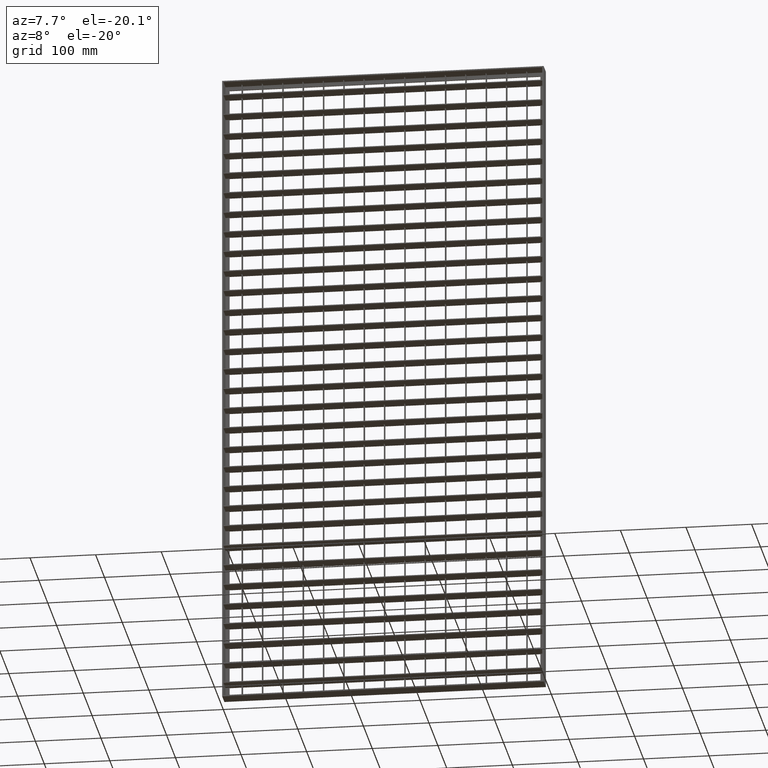
[diagram: clean part render]
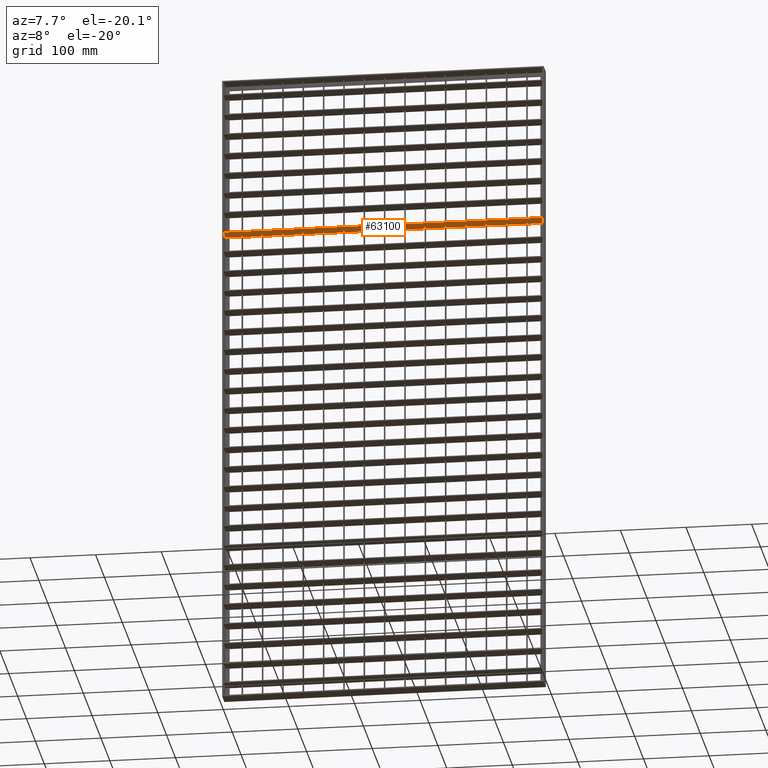
[diagram: same view with one face highlighted and labeled with its STEP entity id]
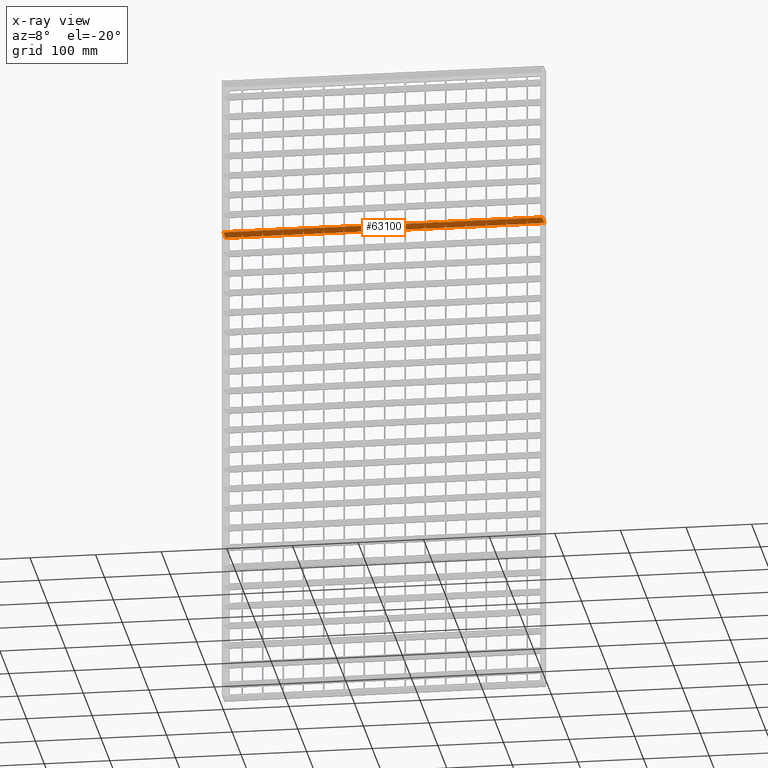
[diagram: x-ray of the same camera — body ghosted, the highlighted face saturated]
A machine part, auxiliary view. The second image highlights one B-rep face of the part: STEP entity #63100.
The next image is the same camera in x-ray: the body ghosted, the highlighted face saturated — about 0% of this face is hidden behind the body in this view.
In plain terms, the highlighted planar face has unit normal (0, 0, -1).
Its self-contained STEP definition (entity closure, byte-faithful):
#284 = DIRECTION ( 'NONE',  ( 0.0000000000000000000, -1.000000000000000000, 0.0000000000000000000 ) ) ;
#433 = LINE ( 'NONE', #63689, #37355 ) ;
#541 = ORIENTED_EDGE ( 'NONE', *, *, #67991, .T. ) ;
#939 = VECTOR ( 'NONE', #23584, 1000.000000000000000 ) ;
#1400 = EDGE_CURVE ( 'NONE', #68399, #29587, #23726, .T. ) ;
#1604 = EDGE_CURVE ( 'NONE', #31754, #42704, #20345, .T. ) ;
#1876 = LINE ( 'NONE', #38503, #33638 ) ;
#2210 = ORIENTED_EDGE ( 'NONE', *, *, #51185, .F. ) ;
#2402 = LINE ( 'NONE', #41521, #56684 ) ;
#2405 = CARTESIAN_POINT ( 'NONE',  ( 430.5000000000000000, -12.49999999999984500, -243.7500000000003400 ) ) ;
#2695 = CARTESIAN_POINT ( 'NONE',  ( 430.5000000000000000, 2.500000000000000400, -243.7500000000003400 ) ) ;
#2698 = VERTEX_POINT ( 'NONE', #38830 ) ;
#2851 = LINE ( 'NONE', #31088, #59641 ) ;
#2882 = VECTOR ( 'NONE', #56244, 1000.000000000000000 ) ;
#2969 = LINE ( 'NONE', #67754, #48570 ) ;
#3530 = ORIENTED_EDGE ( 'NONE', *, *, #46470, .F. ) ;
#3550 = LINE ( 'NONE', #39813, #60330 ) ;
#3870 = VERTEX_POINT ( 'NONE', #25675 ) ;
#3944 = VECTOR ( 'NONE', #14434, 1000.000000000000000 ) ;
#4190 = ORIENTED_EDGE ( 'NONE', *, *, #22517, .F. ) ;
#4281 = VECTOR ( 'NONE', #67530, 1000.000000000000000 ) ;
#4338 = ORIENTED_EDGE ( 'NONE', *, *, #37566, .T. ) ;
#4460 = DIRECTION ( 'NONE',  ( -1.000000000000000000, -3.061616997868382600E-016, 0.0000000000000000000 ) ) ;
#4670 = CARTESIAN_POINT ( 'NONE',  ( 7.999999999999992900, 10.50000000000000500, -243.7500000000003400 ) ) ;
#4893 = LINE ( 'NONE', #51765, #65110 ) ;
#4994 = DIRECTION ( 'NONE',  ( -1.000000000000000000, -3.061616997868382600E-016, 0.0000000000000000000 ) ) ;
#5171 = VERTEX_POINT ( 'NONE', #11675 ) ;
#5539 = VECTOR ( 'NONE', #45035, 1000.000000000000000 ) ;
#5626 = CARTESIAN_POINT ( 'NONE',  ( 513.0449595727363900, 2.499999999999924100, -243.7500000000003400 ) ) ;
#5649 = VECTOR ( 'NONE', #43609, 1000.000000000000000 ) ;
#5765 = VECTOR ( 'NONE', #32419, 1000.000000000000000 ) ;
#5853 = VECTOR ( 'NONE', #20709, 1000.000000000000000 ) ;
#6025 = CARTESIAN_POINT ( 'NONE',  ( 89.50000000000002800, -12.49999999999984500, -243.7500000000003400 ) ) ;
#6042 = LINE ( 'NONE', #45869, #62838 ) ;
#6207 = CARTESIAN_POINT ( 'NONE',  ( 152.5000000000000000, 2.500000000000000900, -243.7500000000005700 ) ) ;
#6220 = CARTESIAN_POINT ( 'NONE',  ( 151.5000000000000000, 2.500000000000000400, -243.7500000000005700 ) ) ;
#6236 = VERTEX_POINT ( 'NONE', #48801 ) ;
#6494 = ORIENTED_EDGE ( 'NONE', *, *, #50988, .F. ) ;
#6556 = VECTOR ( 'NONE', #22551, 1000.000000000000000 ) ;
#6595 = CARTESIAN_POINT ( 'NONE',  ( 431.5000000000000000, 2.500000000000000400, -243.7500000000003400 ) ) ;
#6625 = EDGE_CURVE ( 'NONE', #39008, #32177, #433, .T. ) ;
#6631 = ORIENTED_EDGE ( 'NONE', *, *, #42222, .F. ) ;
#6904 = DIRECTION ( 'NONE',  ( 8.673617379884035500E-016, 1.000000000000000000, 0.0000000000000000000 ) ) ;
#6911 = DIRECTION ( 'NONE',  ( -1.000000000000000000, -3.061616997868382600E-016, 0.0000000000000000000 ) ) ;
#7041 = ORIENTED_EDGE ( 'NONE', *, *, #22925, .F. ) ;
#7079 = EDGE_CURVE ( 'NONE', #17716, #24784, #23571, .T. ) ;
#7196 = EDGE_CURVE ( 'NONE', #35420, #23845, #70937, .T. ) ;
#7318 = VECTOR ( 'NONE', #44509, 1000.000000000000000 ) ;
#7454 = CARTESIAN_POINT ( 'NONE',  ( 513.0449595727363900, 2.499999999999898300, -243.7500000000003400 ) ) ;
#8059 = CARTESIAN_POINT ( 'NONE',  ( 244.5000000000000000, 12.50000000000007300, -243.7500000000003400 ) ) ;
#8122 = DIRECTION ( 'NONE',  ( 0.0000000000000000000, -1.000000000000000000, 0.0000000000000000000 ) ) ;
#8207 = DIRECTION ( 'NONE',  ( -1.000000000000000000, -3.061616997868382600E-016, 0.0000000000000000000 ) ) ;
#8304 = CARTESIAN_POINT ( 'NONE',  ( 27.49999999999996800, 12.50000000000000500, -243.7500000000003400 ) ) ;
#8313 = LINE ( 'NONE', #49727, #52185 ) ;
#8333 = LINE ( 'NONE', #47438, #54751 ) ;
#8376 = LINE ( 'NONE', #29827, #65124 ) ;
#8550 = DIRECTION ( 'NONE',  ( -1.000000000000000000, -3.061616997868382600E-016, 0.0000000000000000000 ) ) ;
#8633 = LINE ( 'NONE', #66455, #43867 ) ;
#8662 = DIRECTION ( 'NONE',  ( -1.000000000000000000, -3.061616997868382600E-016, 0.0000000000000000000 ) ) ;
#8750 = DIRECTION ( 'NONE',  ( 0.0000000000000000000, 1.000000000000000000, 0.0000000000000000000 ) ) ;
#8863 = DIRECTION ( 'NONE',  ( -1.000000000000000000, -3.061616997868382600E-016, 0.0000000000000000000 ) ) ;
#8969 = VECTOR ( 'NONE', #23326, 1000.000000000000000 ) ;
#9185 = EDGE_CURVE ( 'NONE', #23310, #69951, #50892, .T. ) ;
#9187 = EDGE_CURVE ( 'NONE', #17716, #17706, #36141, .T. ) ;
#9206 = DIRECTION ( 'NONE',  ( 1.000000000000000000, -4.336808689942014300E-016, 0.0000000000000000000 ) ) ;
#9212 = VERTEX_POINT ( 'NONE', #8059 ) ;
#9509 = VECTOR ( 'NONE', #4460, 1000.000000000000000 ) ;
#10023 = PLANE ( 'NONE',  #12681 ) ;
#10442 = LINE ( 'NONE', #5626, #33656 ) ;
#10718 = VECTOR ( 'NONE', #60266, 1000.000000000000000 ) ;
#11014 = ORIENTED_EDGE ( 'NONE', *, *, #60584, .F. ) ;
#11319 = CARTESIAN_POINT ( 'NONE',  ( 338.5000000000000000, 12.50000000000000000, -243.7500000000005700 ) ) ;
#11332 = CARTESIAN_POINT ( 'NONE',  ( 337.5000000000000000, 12.50000000000000000, -243.7500000000005700 ) ) ;
#11515 = CARTESIAN_POINT ( 'NONE',  ( 245.5000000000000000, 2.500000000000000900, -243.7500000000005700 ) ) ;
#11675 = CARTESIAN_POINT ( 'NONE',  ( 27.49999999999999600, 2.500000000000000400, -243.7500000000003400 ) ) ;
#11936 = VERTEX_POINT ( 'NONE', #62316 ) ;
#11989 = CARTESIAN_POINT ( 'NONE',  ( 59.50000000000000000, 12.50000000000000000, -243.7500000000003400 ) ) ;
#12226 = LINE ( 'NONE', #23592, #13945 ) ;
#12338 = VERTEX_POINT ( 'NONE', #11989 ) ;
#12438 = DIRECTION ( 'NONE',  ( -1.000000000000000000, -4.336808689942014800E-016, 0.0000000000000000000 ) ) ;
#12443 = CARTESIAN_POINT ( 'NONE',  ( 513.0449595727363900, 2.499999999999937800, -243.7500000000003400 ) ) ;
#12535 = LINE ( 'NONE', #54919, #5649 ) ;
#12675 = VERTEX_POINT ( 'NONE', #64136 ) ;
#12681 = AXIS2_PLACEMENT_3D ( 'NONE', #58625, #48011, #42689 ) ;
#13178 = ORIENTED_EDGE ( 'NONE', *, *, #64253, .F. ) ;
#13383 = CARTESIAN_POINT ( 'NONE',  ( 513.0449595727363900, 2.500000000000156800, -243.7500000000003400 ) ) ;
#13738 = VECTOR ( 'NONE', #29174, 1000.000000000000000 ) ;
#13747 = CARTESIAN_POINT ( 'NONE',  ( 369.5000000000000600, 2.500000000000000400, -243.7500000000005700 ) ) ;
#13796 = CARTESIAN_POINT ( 'NONE',  ( 513.0449595727363900, 2.500000000000142600, -243.7500000000003400 ) ) ;
#13811 = CARTESIAN_POINT ( 'NONE',  ( 59.50000000000000000, 2.500000000000000900, -243.7500000000003400 ) ) ;
#13945 = VECTOR ( 'NONE', #29367, 1000.000000000000000 ) ;
#14105 = ORIENTED_EDGE ( 'NONE', *, *, #7196, .T. ) ;
#14319 = LINE ( 'NONE', #30495, #25481 ) ;
#14434 = DIRECTION ( 'NONE',  ( -1.000000000000000000, -3.061616997868382600E-016, 0.0000000000000000000 ) ) ;
#14461 = DIRECTION ( 'NONE',  ( 0.0000000000000000000, 1.000000000000000000, 0.0000000000000000000 ) ) ;
#14542 = CARTESIAN_POINT ( 'NONE',  ( 513.0449595727363900, 12.50000000000015500, -243.7500000000003400 ) ) ;
#14553 = CARTESIAN_POINT ( 'NONE',  ( 461.5000000000000000, -12.49999999999984500, -243.7500000000003400 ) ) ;
#14575 = ORIENTED_EDGE ( 'NONE', *, *, #64880, .F. ) ;
#14703 = DIRECTION ( 'NONE',  ( -1.000000000000000000, -4.336808689942014300E-016, 0.0000000000000000000 ) ) ;
#14762 = VECTOR ( 'NONE', #56034, 1000.000000000000000 ) ;
#14864 = ORIENTED_EDGE ( 'NONE', *, *, #52055, .F. ) ;
#14942 = CARTESIAN_POINT ( 'NONE',  ( 244.5000000000000000, -12.49999999999984500, -243.7500000000003400 ) ) ;
#15132 = LINE ( 'NONE', #2405, #28031 ) ;
#15225 = CARTESIAN_POINT ( 'NONE',  ( 306.5000000000000000, 12.50000000000000000, -243.7500000000005700 ) ) ;
#15270 = VECTOR ( 'NONE', #18908, 1000.000000000000000 ) ;
#15401 = ORIENTED_EDGE ( 'NONE', *, *, #29312, .F. ) ;
#15603 = CARTESIAN_POINT ( 'NONE',  ( 338.5000000000000000, 2.500000000000000400, -243.7500000000005700 ) ) ;
#15663 = EDGE_CURVE ( 'NONE', #49301, #31614, #47017, .T. ) ;
#15761 = CARTESIAN_POINT ( 'NONE',  ( 513.0449595727363900, 12.50000000000015500, -243.7500000000003400 ) ) ;
#15773 = EDGE_CURVE ( 'NONE', #66550, #24784, #8313, .T. ) ;
#16010 = VECTOR ( 'NONE', #58833, 1000.000000000000000 ) ;
#16152 = DIRECTION ( 'NONE',  ( -1.000000000000000000, -3.061616997868382600E-016, 0.0000000000000000000 ) ) ;
#16284 = CARTESIAN_POINT ( 'NONE',  ( 182.5000000000000000, -12.49999999999984500, -243.7500000000003400 ) ) ;
#16519 = ORIENTED_EDGE ( 'NONE', *, *, #60140, .T. ) ;
#16717 = EDGE_CURVE ( 'NONE', #60700, #17445, #54598, .T. ) ;
#16754 = VERTEX_POINT ( 'NONE', #63644 ) ;
#16847 = VECTOR ( 'NONE', #38825, 1000.000000000000000 ) ;
#17040 = LINE ( 'NONE', #60141, #54987 ) ;
#17152 = CARTESIAN_POINT ( 'NONE',  ( 151.4999999999999700, -12.49999999999984500, -243.7500000000003400 ) ) ;
#17445 = VERTEX_POINT ( 'NONE', #69530 ) ;
#17451 = VERTEX_POINT ( 'NONE', #46970 ) ;
#17467 = EDGE_CURVE ( 'NONE', #31969, #16754, #29442, .T. ) ;
#17516 = CARTESIAN_POINT ( 'NONE',  ( 121.5000000000000000, 12.50000000000000000, -243.7500000000005700 ) ) ;
#17706 = VERTEX_POINT ( 'NONE', #60400 ) ;
#17716 = VERTEX_POINT ( 'NONE', #11332 ) ;
#17995 = DIRECTION ( 'NONE',  ( 0.0000000000000000000, -1.000000000000000000, 0.0000000000000000000 ) ) ;
#18413 = VERTEX_POINT ( 'NONE', #6207 ) ;
#18533 = ORIENTED_EDGE ( 'NONE', *, *, #15773, .T. ) ;
#18600 = EDGE_CURVE ( 'NONE', #16754, #69837, #6042, .T. ) ;
#18908 = DIRECTION ( 'NONE',  ( 0.0000000000000000000, 1.000000000000000000, 0.0000000000000000000 ) ) ;
#18918 = EDGE_CURVE ( 'NONE', #25061, #71108, #41340, .T. ) ;
#18968 = VECTOR ( 'NONE', #60274, 1000.000000000000000 ) ;
#19203 = DIRECTION ( 'NONE',  ( -1.000000000000000000, -4.336808689942014800E-016, 0.0000000000000000000 ) ) ;
#19428 = VECTOR ( 'NONE', #69447, 1000.000000000000000 ) ;
#19468 = CARTESIAN_POINT ( 'NONE',  ( 430.5000000000000000, 12.50000000000000000, -243.7500000000003400 ) ) ;
#20068 = CARTESIAN_POINT ( 'NONE',  ( 182.4999999999999400, 12.50000000000005500, -243.7500000000003400 ) ) ;
#20112 = VERTEX_POINT ( 'NONE', #6220 ) ;
#20256 = VECTOR ( 'NONE', #58557, 1000.000000000000000 ) ;
#20296 = LINE ( 'NONE', #15761, #34935 ) ;
#20345 = LINE ( 'NONE', #37835, #16010 ) ;
#20614 = EDGE_CURVE ( 'NONE', #69837, #30982, #53079, .T. ) ;
#20709 = DIRECTION ( 'NONE',  ( 0.0000000000000000000, 1.000000000000000000, 0.0000000000000000000 ) ) ;
#20818 = EDGE_CURVE ( 'NONE', #69951, #60459, #63378, .T. ) ;
#21064 = CARTESIAN_POINT ( 'NONE',  ( 2.000000000000002700, 10.50000000000000500, -243.7500000000003400 ) ) ;
#21502 = VECTOR ( 'NONE', #35416, 1000.000000000000000 ) ;
#21571 = VECTOR ( 'NONE', #68377, 1000.000000000000000 ) ;
#21732 = VERTEX_POINT ( 'NONE', #15225 ) ;
#21738 = LINE ( 'NONE', #32938, #32871 ) ;
#21855 = CARTESIAN_POINT ( 'NONE',  ( 7.999999999999994700, 12.50000000000000500, -243.7500000000003400 ) ) ;
#22168 = ORIENTED_EDGE ( 'NONE', *, *, #18918, .F. ) ;
#22276 = DIRECTION ( 'NONE',  ( 0.0000000000000000000, 1.000000000000000000, 0.0000000000000000000 ) ) ;
#22517 = EDGE_CURVE ( 'NONE', #5171, #26175, #2851, .T. ) ;
#22532 = ORIENTED_EDGE ( 'NONE', *, *, #1604, .F. ) ;
#22551 = DIRECTION ( 'NONE',  ( 0.0000000000000000000, 1.000000000000000000, 0.0000000000000000000 ) ) ;
#22925 = EDGE_CURVE ( 'NONE', #58299, #31448, #12226, .T. ) ;
#23288 = CARTESIAN_POINT ( 'NONE',  ( 245.0000000000000000, 10.50000000000000500, -243.7500000000003400 ) ) ;
#23310 = VERTEX_POINT ( 'NONE', #54357 ) ;
#23326 = DIRECTION ( 'NONE',  ( -1.000000000000000000, -3.061616997868382600E-016, 0.0000000000000000000 ) ) ;
#23424 = VECTOR ( 'NONE', #8750, 1000.000000000000000 ) ;
#23557 = EDGE_CURVE ( 'NONE', #28945, #35201, #26290, .T. ) ;
#23571 = LINE ( 'NONE', #28406, #5539 ) ;
#23584 = DIRECTION ( 'NONE',  ( 0.0000000000000000000, 1.000000000000000000, 0.0000000000000000000 ) ) ;
#23592 = CARTESIAN_POINT ( 'NONE',  ( 58.50000000000000000, -12.49999999999984500, -243.7500000000003400 ) ) ;
#23726 = LINE ( 'NONE', #14553, #38453 ) ;
#23845 = VERTEX_POINT ( 'NONE', #47497 ) ;
#23963 = EDGE_CURVE ( 'NONE', #36027, #29089, #12535, .T. ) ;
#24520 = VERTEX_POINT ( 'NONE', #37706 ) ;
#24553 = CARTESIAN_POINT ( 'NONE',  ( 183.5000000000000000, 12.50000000000000000, -243.7500000000005700 ) ) ;
#24614 = LINE ( 'NONE', #54488, #52192 ) ;
#24767 = DIRECTION ( 'NONE',  ( 0.0000000000000000000, -1.000000000000000000, 0.0000000000000000000 ) ) ;
#24784 = VERTEX_POINT ( 'NONE', #55536 ) ;
#24911 = CARTESIAN_POINT ( 'NONE',  ( 58.50000000000000000, 2.500000000000000400, -243.7500000000003400 ) ) ;
#25061 = VERTEX_POINT ( 'NONE', #27559 ) ;
#25216 = LINE ( 'NONE', #69437, #34671 ) ;
#25292 = VECTOR ( 'NONE', #8122, 1000.000000000000000 ) ;
#25458 = EDGE_CURVE ( 'NONE', #70810, #12675, #27668, .T. ) ;
#25481 = VECTOR ( 'NONE', #8207, 1000.000000000000000 ) ;
#25619 = LINE ( 'NONE', #27983, #28236 ) ;
#25625 = ORIENTED_EDGE ( 'NONE', *, *, #42952, .F. ) ;
#25640 = VERTEX_POINT ( 'NONE', #58860 ) ;
#25675 = CARTESIAN_POINT ( 'NONE',  ( 214.5000000000000000, 12.50000000000000000, -243.7500000000005700 ) ) ;
#25877 = DIRECTION ( 'NONE',  ( -1.000000000000000000, -3.061616997868382600E-016, 0.0000000000000000000 ) ) ;
#26066 = LINE ( 'NONE', #42380, #68269 ) ;
#26175 = VERTEX_POINT ( 'NONE', #8304 ) ;
#26290 = LINE ( 'NONE', #6025, #6556 ) ;
#26626 = DIRECTION ( 'NONE',  ( 1.000000000000000000, -4.336808689942014800E-016, 0.0000000000000000000 ) ) ;
#27056 = DIRECTION ( 'NONE',  ( -1.000000000000000000, -4.336808689942014300E-016, 0.0000000000000000000 ) ) ;
#27122 = EDGE_CURVE ( 'NONE', #20112, #56295, #61028, .T. ) ;
#27324 = CARTESIAN_POINT ( 'NONE',  ( 513.0449595727363900, 2.500000000000130600, -243.7500000000003400 ) ) ;
#27437 = VERTEX_POINT ( 'NONE', #30336 ) ;
#27528 = CARTESIAN_POINT ( 'NONE',  ( 461.5000000000000000, 2.500000000000000400, -243.7500000000003400 ) ) ;
#27559 = CARTESIAN_POINT ( 'NONE',  ( 368.5000000000000600, 12.50000000000000000, -243.7500000000005700 ) ) ;
#27620 = ORIENTED_EDGE ( 'NONE', *, *, #33773, .T. ) ;
#27668 = LINE ( 'NONE', #40291, #14762 ) ;
#27669 = VERTEX_POINT ( 'NONE', #60644 ) ;
#27742 = DIRECTION ( 'NONE',  ( 0.0000000000000000000, 1.000000000000000000, 0.0000000000000000000 ) ) ;
#27983 = CARTESIAN_POINT ( 'NONE',  ( 513.0449595727363900, 2.499999999999977800, -243.7500000000003400 ) ) ;
#28031 = VECTOR ( 'NONE', #46192, 1000.000000000000000 ) ;
#28167 = EDGE_CURVE ( 'NONE', #25061, #47858, #57490, .T. ) ;
#28211 = DIRECTION ( 'NONE',  ( 1.000000000000000000, -4.336808689942014300E-016, 0.0000000000000000000 ) ) ;
#28236 = VECTOR ( 'NONE', #28211, 1000.000000000000000 ) ;
#28397 = EDGE_CURVE ( 'NONE', #17451, #57318, #71180, .T. ) ;
#28406 = CARTESIAN_POINT ( 'NONE',  ( 513.0449595727363900, 12.50000000000015500, -243.7500000000003400 ) ) ;
#28462 = ORIENTED_EDGE ( 'NONE', *, *, #29352, .T. ) ;
#28589 = ORIENTED_EDGE ( 'NONE', *, *, #57760, .F. ) ;
#28711 = EDGE_CURVE ( 'NONE', #27437, #24520, #4893, .T. ) ;
#28945 = VERTEX_POINT ( 'NONE', #65872 ) ;
#28955 = ORIENTED_EDGE ( 'NONE', *, *, #28397, .F. ) ;
#29089 = VERTEX_POINT ( 'NONE', #61288 ) ;
#29174 = DIRECTION ( 'NONE',  ( 0.0000000000000000000, -1.000000000000000000, 0.0000000000000000000 ) ) ;
#29312 = EDGE_CURVE ( 'NONE', #21732, #69073, #2402, .T. ) ;
#29352 = EDGE_CURVE ( 'NONE', #32102, #71108, #48020, .T. ) ;
#29367 = DIRECTION ( 'NONE',  ( 0.0000000000000000000, 1.000000000000000000, 0.0000000000000000000 ) ) ;
#29442 = LINE ( 'NONE', #63558, #23424 ) ;
#29587 = VERTEX_POINT ( 'NONE', #27528 ) ;
#29827 = CARTESIAN_POINT ( 'NONE',  ( 513.0449595727363900, 12.50000000000015500, -243.7500000000003400 ) ) ;
#29968 = CARTESIAN_POINT ( 'NONE',  ( 338.5000000000000000, -12.49999999999984500, -243.7500000000003400 ) ) ;
#30324 = ORIENTED_EDGE ( 'NONE', *, *, #55630, .T. ) ;
#30336 = CARTESIAN_POINT ( 'NONE',  ( 120.5000000000000000, 12.50000000000003600, -243.7500000000003400 ) ) ;
#30352 = LINE ( 'NONE', #34156, #8969 ) ;
#30414 = LINE ( 'NONE', #45400, #31296 ) ;
#30495 = CARTESIAN_POINT ( 'NONE',  ( 513.0449595727363900, 12.50000000000015500, -243.7500000000003400 ) ) ;
#30649 = DIRECTION ( 'NONE',  ( -1.000000000000000000, -3.061616997868382600E-016, 0.0000000000000000000 ) ) ;
#30692 = EDGE_CURVE ( 'NONE', #32032, #35420, #24614, .T. ) ;
#30950 = VECTOR ( 'NONE', #26626, 1000.000000000000000 ) ;
#30982 = VERTEX_POINT ( 'NONE', #33752 ) ;
#31028 = FACE_OUTER_BOUND ( 'NONE', #68639, .T. ) ;
#31088 = CARTESIAN_POINT ( 'NONE',  ( 27.49999999999996800, -12.49999999999984500, -243.7500000000003400 ) ) ;
#31162 = CARTESIAN_POINT ( 'NONE',  ( 513.0449595727363900, 12.50000000000015500, -243.7500000000003400 ) ) ;
#31192 = ORIENTED_EDGE ( 'NONE', *, *, #25458, .T. ) ;
#31296 = VECTOR ( 'NONE', #12438, 1000.000000000000000 ) ;
#31327 = EDGE_CURVE ( 'NONE', #26175, #68275, #62413, .T. ) ;
#31413 = DIRECTION ( 'NONE',  ( 0.0000000000000000000, -1.000000000000000000, 0.0000000000000000000 ) ) ;
#31448 = VERTEX_POINT ( 'NONE', #59496 ) ;
#31577 = ORIENTED_EDGE ( 'NONE', *, *, #49490, .F. ) ;
#31614 = VERTEX_POINT ( 'NONE', #4670 ) ;
#31656 = ORIENTED_EDGE ( 'NONE', *, *, #51847, .F. ) ;
#31754 = VERTEX_POINT ( 'NONE', #67132 ) ;
#31969 = VERTEX_POINT ( 'NONE', #36065 ) ;
#32032 = VERTEX_POINT ( 'NONE', #2695 ) ;
#32072 = DIRECTION ( 'NONE',  ( 1.000000000000000000, -4.336808689942014300E-016, 0.0000000000000000000 ) ) ;
#32102 = VERTEX_POINT ( 'NONE', #15603 ) ;
#32128 = VECTOR ( 'NONE', #36186, 1000.000000000000000 ) ;
#32177 = VERTEX_POINT ( 'NONE', #70449 ) ;
#32419 = DIRECTION ( 'NONE',  ( -1.000000000000000000, -3.061616997868382600E-016, 0.0000000000000000000 ) ) ;
#32484 = LINE ( 'NONE', #42101, #66124 ) ;
#32757 = DIRECTION ( 'NONE',  ( 1.000000000000000000, -4.336808689942014800E-016, 0.0000000000000000000 ) ) ;
#32871 = VECTOR ( 'NONE', #70481, 1000.000000000000000 ) ;
#32938 = CARTESIAN_POINT ( 'NONE',  ( 121.5000000000000000, -12.49999999999984500, -243.7500000000003400 ) ) ;
#32999 = CARTESIAN_POINT ( 'NONE',  ( 400.4999999999999400, 12.50000000000000000, -243.7500000000003400 ) ) ;
#33638 = VECTOR ( 'NONE', #14703, 1000.000000000000000 ) ;
#33656 = VECTOR ( 'NONE', #32757, 1000.000000000000000 ) ;
#33752 = CARTESIAN_POINT ( 'NONE',  ( 183.5000000000000000, 2.500000000000000900, -243.7500000000005700 ) ) ;
#33773 = EDGE_CURVE ( 'NONE', #11936, #68775, #25216, .T. ) ;
#33912 = ORIENTED_EDGE ( 'NONE', *, *, #34083, .F. ) ;
#33917 = VECTOR ( 'NONE', #17995, 1000.000000000000000 ) ;
#34083 = EDGE_CURVE ( 'NONE', #17445, #5171, #37217, .T. ) ;
#34156 = CARTESIAN_POINT ( 'NONE',  ( 513.0449595727363900, 12.50000000000015500, -243.7500000000003400 ) ) ;
#34470 = CARTESIAN_POINT ( 'NONE',  ( 59.50000000000000000, -12.49999999999984500, -243.7500000000003400 ) ) ;
#34671 = VECTOR ( 'NONE', #25877, 1000.000000000000000 ) ;
#34781 = ORIENTED_EDGE ( 'NONE', *, *, #9187, .T. ) ;
#34892 = DIRECTION ( 'NONE',  ( -1.000000000000000000, -3.061616997868382600E-016, 0.0000000000000000000 ) ) ;
#34927 = ORIENTED_EDGE ( 'NONE', *, *, #63309, .F. ) ;
#34935 = VECTOR ( 'NONE', #4994, 1000.000000000000000 ) ;
#35031 = CARTESIAN_POINT ( 'NONE',  ( 121.5000000000000000, 2.500000000000000900, -243.7500000000005700 ) ) ;
#35124 = CARTESIAN_POINT ( 'NONE',  ( 152.4999999999999700, -12.49999999999984500, -243.7500000000003400 ) ) ;
#35201 = VERTEX_POINT ( 'NONE', #59753 ) ;
#35416 = DIRECTION ( 'NONE',  ( 0.0000000000000000000, -1.000000000000000000, 0.0000000000000000000 ) ) ;
#35420 = VERTEX_POINT ( 'NONE', #6595 ) ;
#35782 = LINE ( 'NONE', #47543, #63375 ) ;
#36027 = VERTEX_POINT ( 'NONE', #66603 ) ;
#36065 = CARTESIAN_POINT ( 'NONE',  ( 213.5000000000000000, 2.500000000000000400, -243.7500000000005700 ) ) ;
#36103 = ORIENTED_EDGE ( 'NONE', *, *, #53912, .F. ) ;
#36141 = LINE ( 'NONE', #56659, #21502 ) ;
#36186 = DIRECTION ( 'NONE',  ( -1.000000000000000000, -4.336808689942014800E-016, 0.0000000000000000000 ) ) ;
#36251 = LINE ( 'NONE', #31162, #40562 ) ;
#36774 = VERTEX_POINT ( 'NONE', #13811 ) ;
#37217 = LINE ( 'NONE', #54521, #41519 ) ;
#37333 = EDGE_CURVE ( 'NONE', #23310, #55057, #8376, .T. ) ;
#37355 = VECTOR ( 'NONE', #58420, 1000.000000000000000 ) ;
#37362 = ORIENTED_EDGE ( 'NONE', *, *, #66265, .T. ) ;
#37566 = EDGE_CURVE ( 'NONE', #42368, #32032, #15132, .T. ) ;
#37706 = CARTESIAN_POINT ( 'NONE',  ( 90.50000000000000000, 12.50000000000000000, -243.7500000000003400 ) ) ;
#37835 = CARTESIAN_POINT ( 'NONE',  ( 245.5000000000000000, -12.49999999999984500, -243.7500000000003400 ) ) ;
#38327 = LINE ( 'NONE', #50134, #16847 ) ;
#38453 = VECTOR ( 'NONE', #53046, 1000.000000000000000 ) ;
#38503 = CARTESIAN_POINT ( 'NONE',  ( 513.0449595727363900, 2.500000000000196300, -243.7500000000003400 ) ) ;
#38825 = DIRECTION ( 'NONE',  ( 0.0000000000000000000, 1.000000000000000000, 0.0000000000000000000 ) ) ;
#38830 = CARTESIAN_POINT ( 'NONE',  ( 462.5000000000000000, 2.500000000000000400, -243.7500000000003400 ) ) ;
#39008 = VERTEX_POINT ( 'NONE', #13747 ) ;
#39197 = CARTESIAN_POINT ( 'NONE',  ( 368.5000000000000600, 2.500000000000000400, -243.7500000000003400 ) ) ;
#39238 = VERTEX_POINT ( 'NONE', #49841 ) ;
#39297 = CARTESIAN_POINT ( 'NONE',  ( 120.5000000000000000, 2.500000000000000400, -243.7500000000005700 ) ) ;
#39813 = CARTESIAN_POINT ( 'NONE',  ( 7.999999999999992900, 10.50000000000000500, -243.7500000000003400 ) ) ;
#39882 = CARTESIAN_POINT ( 'NONE',  ( 461.5000000000000000, 12.50000000000000000, -243.7500000000003400 ) ) ;
#40291 = CARTESIAN_POINT ( 'NONE',  ( 275.4999999999999400, -12.49999999999984500, -243.7500000000003400 ) ) ;
#40562 = VECTOR ( 'NONE', #8662, 1000.000000000000000 ) ;
#40751 = EDGE_CURVE ( 'NONE', #62657, #9212, #59179, .T. ) ;
#41267 = EDGE_CURVE ( 'NONE', #35201, #12338, #14319, .T. ) ;
#41340 = LINE ( 'NONE', #14542, #9509 ) ;
#41405 = CARTESIAN_POINT ( 'NONE',  ( 244.5000000000000000, 2.500000000000000400, -243.7500000000005700 ) ) ;
#41519 = VECTOR ( 'NONE', #27056, 1000.000000000000000 ) ;
#41521 = CARTESIAN_POINT ( 'NONE',  ( 513.0449595727363900, 12.50000000000015500, -243.7500000000003400 ) ) ;
#41557 = CARTESIAN_POINT ( 'NONE',  ( 2.000000000000002700, 10.50000000000000500, -243.7500000000003400 ) ) ;
#41571 = EDGE_CURVE ( 'NONE', #11936, #60459, #38327, .T. ) ;
#41584 = LINE ( 'NONE', #27324, #46790 ) ;
#41591 = ORIENTED_EDGE ( 'NONE', *, *, #28711, .F. ) ;
#41673 = ORIENTED_EDGE ( 'NONE', *, *, #53215, .T. ) ;
#41801 = VECTOR ( 'NONE', #70643, 1000.000000000000000 ) ;
#42101 = CARTESIAN_POINT ( 'NONE',  ( 462.5000000000000000, -12.49999999999984500, -243.7500000000003400 ) ) ;
#42222 = EDGE_CURVE ( 'NONE', #3870, #25640, #65809, .T. ) ;
#42233 = ORIENTED_EDGE ( 'NONE', *, *, #15663, .T. ) ;
#42368 = VERTEX_POINT ( 'NONE', #19468 ) ;
#42380 = CARTESIAN_POINT ( 'NONE',  ( 120.5000000000000000, -12.49999999999984500, -243.7500000000003400 ) ) ;
#42427 = EDGE_CURVE ( 'NONE', #56295, #70217, #59001, .T. ) ;
#42689 = DIRECTION ( 'NONE',  ( -1.000000000000000000, 0.0000000000000000000, 0.0000000000000000000 ) ) ;
#42704 = VERTEX_POINT ( 'NONE', #11515 ) ;
#42764 = VECTOR ( 'NONE', #284, 1000.000000000000000 ) ;
#42872 = VERTEX_POINT ( 'NONE', #35031 ) ;
#42952 = EDGE_CURVE ( 'NONE', #6236, #28945, #2969, .T. ) ;
#43563 = ORIENTED_EDGE ( 'NONE', *, *, #40751, .F. ) ;
#43609 = DIRECTION ( 'NONE',  ( 0.0000000000000000000, -1.000000000000000000, 0.0000000000000000000 ) ) ;
#43858 = CARTESIAN_POINT ( 'NONE',  ( 513.0449595727363900, 12.50000000000015500, -243.7500000000003400 ) ) ;
#43867 = VECTOR ( 'NONE', #65743, 1000.000000000000000 ) ;
#43913 = LINE ( 'NONE', #48335, #30950 ) ;
#43978 = DIRECTION ( 'NONE',  ( 0.0000000000000000000, 1.000000000000000000, 0.0000000000000000000 ) ) ;
#44054 = CARTESIAN_POINT ( 'NONE',  ( 400.4999999999999400, 2.500000000000000400, -243.7500000000003400 ) ) ;
#44185 = DIRECTION ( 'NONE',  ( -1.000000000000000000, -4.336808689942014800E-016, 0.0000000000000000000 ) ) ;
#44509 = DIRECTION ( 'NONE',  ( 0.0000000000000000000, -1.000000000000000000, 0.0000000000000000000 ) ) ;
#45035 = DIRECTION ( 'NONE',  ( -1.000000000000000000, -3.061616997868382600E-016, 0.0000000000000000000 ) ) ;
#45290 = EDGE_CURVE ( 'NONE', #47858, #39008, #54498, .T. ) ;
#45369 = LINE ( 'NONE', #59630, #5765 ) ;
#45400 = CARTESIAN_POINT ( 'NONE',  ( 513.0449595727363900, 2.500000000000170500, -243.7500000000003400 ) ) ;
#45512 = ORIENTED_EDGE ( 'NONE', *, *, #53388, .F. ) ;
#45711 = LINE ( 'NONE', #56112, #939 ) ;
#45869 = CARTESIAN_POINT ( 'NONE',  ( 513.0449595727363900, 12.50000000000015500, -243.7500000000003400 ) ) ;
#46086 = ORIENTED_EDGE ( 'NONE', *, *, #28167, .T. ) ;
#46192 = DIRECTION ( 'NONE',  ( 0.0000000000000000000, -1.000000000000000000, 0.0000000000000000000 ) ) ;
#46336 = CARTESIAN_POINT ( 'NONE',  ( 28.49999999999997200, -12.49999999999984500, -243.7500000000003400 ) ) ;
#46412 = VECTOR ( 'NONE', #27742, 1000.000000000000000 ) ;
#46470 = EDGE_CURVE ( 'NONE', #36774, #58299, #1876, .T. ) ;
#46534 = VECTOR ( 'NONE', #24767, 1000.000000000000000 ) ;
#46790 = VECTOR ( 'NONE', #44185, 1000.000000000000000 ) ;
#46970 = CARTESIAN_POINT ( 'NONE',  ( 182.5000000000000000, 2.500000000000000400, -243.7500000000005700 ) ) ;
#47017 = LINE ( 'NONE', #21064, #41801 ) ;
#47411 = CARTESIAN_POINT ( 'NONE',  ( 513.0449595727363900, 12.50000000000015500, -243.7500000000003400 ) ) ;
#47438 = CARTESIAN_POINT ( 'NONE',  ( 513.0449595727363900, 2.499999999999952000, -243.7500000000003400 ) ) ;
#47465 = ORIENTED_EDGE ( 'NONE', *, *, #18600, .F. ) ;
#47497 = CARTESIAN_POINT ( 'NONE',  ( 431.5000000000000000, 12.50000000000000000, -243.7500000000003400 ) ) ;
#47543 = CARTESIAN_POINT ( 'NONE',  ( 513.0449595727363900, 12.50000000000015500, -243.7500000000003400 ) ) ;
#47769 = VECTOR ( 'NONE', #16152, 1000.000000000000000 ) ;
#47838 = ORIENTED_EDGE ( 'NONE', *, *, #69831, .T. ) ;
#47858 = VERTEX_POINT ( 'NONE', #39197 ) ;
#47909 = VERTEX_POINT ( 'NONE', #44054 ) ;
#48011 = DIRECTION ( 'NONE',  ( 0.0000000000000000000, 0.0000000000000000000, -1.000000000000000000 ) ) ;
#48020 = LINE ( 'NONE', #29968, #15270 ) ;
#48044 = CARTESIAN_POINT ( 'NONE',  ( 2.000000000000002700, -12.50000000000000000, -243.7500000000003400 ) ) ;
#48276 = LINE ( 'NONE', #60031, #18968 ) ;
#48309 = ORIENTED_EDGE ( 'NONE', *, *, #31327, .F. ) ;
#48335 = CARTESIAN_POINT ( 'NONE',  ( 513.0449595727363900, 2.499999999999910300, -243.7500000000003400 ) ) ;
#48371 = DIRECTION ( 'NONE',  ( 0.0000000000000000000, -1.000000000000000000, 0.0000000000000000000 ) ) ;
#48570 = VECTOR ( 'NONE', #51423, 1000.000000000000000 ) ;
#48571 = LINE ( 'NONE', #50746, #33917 ) ;
#48801 = CARTESIAN_POINT ( 'NONE',  ( 90.50000000000000000, 2.500000000000000900, -243.7500000000003400 ) ) ;
#48849 = CARTESIAN_POINT ( 'NONE',  ( 276.4999999999999400, 2.500000000000000400, -243.7500000000005700 ) ) ;
#48897 = VERTEX_POINT ( 'NONE', #48849 ) ;
#48982 = EDGE_CURVE ( 'NONE', #70217, #42872, #21738, .T. ) ;
#49030 = LINE ( 'NONE', #68288, #62858 ) ;
#49301 = VERTEX_POINT ( 'NONE', #41557 ) ;
#49490 = EDGE_CURVE ( 'NONE', #36027, #32177, #45369, .T. ) ;
#49682 = ORIENTED_EDGE ( 'NONE', *, *, #27122, .F. ) ;
#49727 = CARTESIAN_POINT ( 'NONE',  ( 307.5000000000000000, -12.49999999999984500, -243.7500000000003400 ) ) ;
#49841 = CARTESIAN_POINT ( 'NONE',  ( 152.5000000000000000, 12.50000000000000000, -243.7500000000005700 ) ) ;
#50072 = DIRECTION ( 'NONE',  ( 0.0000000000000000000, 1.000000000000000000, 0.0000000000000000000 ) ) ;
#50134 = CARTESIAN_POINT ( 'NONE',  ( 488.0000000000001100, -12.49999999999984500, -243.7500000000003400 ) ) ;
#50233 = EDGE_CURVE ( 'NONE', #68775, #49301, #52129, .T. ) ;
#50311 = ORIENTED_EDGE ( 'NONE', *, *, #23963, .T. ) ;
#50746 = CARTESIAN_POINT ( 'NONE',  ( 306.5000000000000000, -12.49999999999984500, -243.7500000000003400 ) ) ;
#50892 = LINE ( 'NONE', #51576, #21571 ) ;
#50988 = EDGE_CURVE ( 'NONE', #42872, #55790, #30414, .T. ) ;
#51185 = EDGE_CURVE ( 'NONE', #18413, #20112, #61434, .T. ) ;
#51337 = ORIENTED_EDGE ( 'NONE', *, *, #30692, .T. ) ;
#51423 = DIRECTION ( 'NONE',  ( -1.000000000000000000, -4.336808689942014300E-016, 0.0000000000000000000 ) ) ;
#51576 = CARTESIAN_POINT ( 'NONE',  ( 482.0000000000001100, 10.50000000000036400, -243.7500000000003400 ) ) ;
#51765 = CARTESIAN_POINT ( 'NONE',  ( 513.0449595727363900, 12.50000000000015500, -243.7500000000003400 ) ) ;
#51847 = EDGE_CURVE ( 'NONE', #55790, #27437, #26066, .T. ) ;
#51992 = DIRECTION ( 'NONE',  ( -1.000000000000000000, -3.061616997868382600E-016, 0.0000000000000000000 ) ) ;
#51997 = ORIENTED_EDGE ( 'NONE', *, *, #7079, .F. ) ;
#52055 = EDGE_CURVE ( 'NONE', #9212, #3870, #30352, .T. ) ;
#52114 = LINE ( 'NONE', #13796, #20256 ) ;
#52129 = LINE ( 'NONE', #60429, #57340 ) ;
#52185 = VECTOR ( 'NONE', #22276, 1000.000000000000000 ) ;
#52192 = VECTOR ( 'NONE', #32072, 1000.000000000000000 ) ;
#53046 = DIRECTION ( 'NONE',  ( 0.0000000000000000000, -1.000000000000000000, 0.0000000000000000000 ) ) ;
#53079 = LINE ( 'NONE', #67075, #42764 ) ;
#53109 = EDGE_CURVE ( 'NONE', #17706, #32102, #10442, .T. ) ;
#53215 = EDGE_CURVE ( 'NONE', #47909, #64314, #45711, .T. ) ;
#53388 = EDGE_CURVE ( 'NONE', #39238, #18413, #70593, .T. ) ;
#53419 = ORIENTED_EDGE ( 'NONE', *, *, #63624, .F. ) ;
#53912 = EDGE_CURVE ( 'NONE', #70810, #31754, #63651, .T. ) ;
#54357 = CARTESIAN_POINT ( 'NONE',  ( 482.0000000000000600, 12.50000000000000500, -243.7500000000003400 ) ) ;
#54422 = DIRECTION ( 'NONE',  ( 0.0000000000000000000, 1.000000000000000000, 0.0000000000000000000 ) ) ;
#54488 = CARTESIAN_POINT ( 'NONE',  ( 513.0449595727363900, 2.499999999999964000, -243.7500000000003400 ) ) ;
#54498 = LINE ( 'NONE', #12443, #2882 ) ;
#54521 = CARTESIAN_POINT ( 'NONE',  ( 513.0449595727363900, 2.500000000000210500, -243.7500000000003400 ) ) ;
#54598 = LINE ( 'NONE', #46336, #25292 ) ;
#54751 = VECTOR ( 'NONE', #9206, 1000.000000000000000 ) ;
#54919 = CARTESIAN_POINT ( 'NONE',  ( 399.4999999999999400, -12.49999999999984500, -243.7500000000003400 ) ) ;
#54987 = VECTOR ( 'NONE', #48371, 1000.000000000000000 ) ;
#55057 = VERTEX_POINT ( 'NONE', #68015 ) ;
#55070 = EDGE_CURVE ( 'NONE', #12675, #48897, #57648, .T. ) ;
#55263 = ORIENTED_EDGE ( 'NONE', *, *, #70875, .T. ) ;
#55536 = CARTESIAN_POINT ( 'NONE',  ( 307.5000000000000000, 12.50000000000000000, -243.7500000000005700 ) ) ;
#55577 = ORIENTED_EDGE ( 'NONE', *, *, #16717, .F. ) ;
#55630 = EDGE_CURVE ( 'NONE', #29587, #2698, #25619, .T. ) ;
#55695 = ORIENTED_EDGE ( 'NONE', *, *, #37333, .F. ) ;
#55710 = CARTESIAN_POINT ( 'NONE',  ( 28.49999999999999600, 12.50000000000000000, -243.7500000000003400 ) ) ;
#55790 = VERTEX_POINT ( 'NONE', #39297 ) ;
#56034 = DIRECTION ( 'NONE',  ( 0.0000000000000000000, -1.000000000000000000, 0.0000000000000000000 ) ) ;
#56112 = CARTESIAN_POINT ( 'NONE',  ( 400.4999999999999400, -12.49999999999984500, -243.7500000000003400 ) ) ;
#56244 = DIRECTION ( 'NONE',  ( 1.000000000000000000, -4.336808689942014800E-016, 0.0000000000000000000 ) ) ;
#56295 = VERTEX_POINT ( 'NONE', #61347 ) ;
#56608 = VECTOR ( 'NONE', #43978, 1000.000000000000000 ) ;
#56659 = CARTESIAN_POINT ( 'NONE',  ( 337.5000000000000000, -12.49999999999984500, -243.7500000000003400 ) ) ;
#56684 = VECTOR ( 'NONE', #8863, 1000.000000000000000 ) ;
#56686 = ORIENTED_EDGE ( 'NONE', *, *, #20614, .F. ) ;
#56907 = ORIENTED_EDGE ( 'NONE', *, *, #57334, .F. ) ;
#57318 = VERTEX_POINT ( 'NONE', #20068 ) ;
#57334 = EDGE_CURVE ( 'NONE', #31448, #60700, #35782, .T. ) ;
#57337 = CARTESIAN_POINT ( 'NONE',  ( 275.4999999999999400, 12.50000000000000000, -243.7500000000005700 ) ) ;
#57340 = VECTOR ( 'NONE', #50072, 1000.000000000000000 ) ;
#57424 = CARTESIAN_POINT ( 'NONE',  ( 276.4999999999999400, 12.50000000000000000, -243.7500000000005700 ) ) ;
#57490 = LINE ( 'NONE', #68759, #64356 ) ;
#57561 = ORIENTED_EDGE ( 'NONE', *, *, #20818, .T. ) ;
#57614 = ORIENTED_EDGE ( 'NONE', *, *, #1400, .T. ) ;
#57648 = LINE ( 'NONE', #7454, #4281 ) ;
#57687 = LINE ( 'NONE', #34470, #13738 ) ;
#57760 = EDGE_CURVE ( 'NONE', #30982, #17451, #52114, .T. ) ;
#57917 = CARTESIAN_POINT ( 'NONE',  ( 488.0000000000001100, 10.50000000000000500, -243.7500000000003400 ) ) ;
#58299 = VERTEX_POINT ( 'NONE', #24911 ) ;
#58420 = DIRECTION ( 'NONE',  ( 0.0000000000000000000, 1.000000000000000000, 0.0000000000000000000 ) ) ;
#58557 = DIRECTION ( 'NONE',  ( -1.000000000000000000, -4.336808689942014800E-016, 0.0000000000000000000 ) ) ;
#58625 = CARTESIAN_POINT ( 'NONE',  ( 513.0449595727363900, -12.49999999999984500, -243.7500000000003400 ) ) ;
#58833 = DIRECTION ( 'NONE',  ( 0.0000000000000000000, -1.000000000000000000, 0.0000000000000000000 ) ) ;
#58860 = CARTESIAN_POINT ( 'NONE',  ( 214.5000000000000000, 2.500000000000000900, -243.7500000000005700 ) ) ;
#58966 = ORIENTED_EDGE ( 'NONE', *, *, #50233, .T. ) ;
#59001 = LINE ( 'NONE', #47411, #3944 ) ;
#59179 = LINE ( 'NONE', #14942, #5853 ) ;
#59496 = CARTESIAN_POINT ( 'NONE',  ( 58.49999999999994300, 12.50000000000001600, -243.7500000000003400 ) ) ;
#59630 = CARTESIAN_POINT ( 'NONE',  ( 513.0449595727363900, 12.50000000000015500, -243.7500000000003400 ) ) ;
#59641 = VECTOR ( 'NONE', #69593, 1000.000000000000000 ) ;
#59753 = CARTESIAN_POINT ( 'NONE',  ( 89.49999999999997200, 12.50000000000002500, -243.7500000000003400 ) ) ;
#60031 = CARTESIAN_POINT ( 'NONE',  ( 513.0449595727363900, 12.50000000000015500, -243.7500000000003400 ) ) ;
#60140 = EDGE_CURVE ( 'NONE', #27669, #66550, #43913, .T. ) ;
#60141 = CARTESIAN_POINT ( 'NONE',  ( 90.50000000000002800, -12.49999999999984500, -243.7500000000003400 ) ) ;
#60201 = ORIENTED_EDGE ( 'NONE', *, *, #45290, .T. ) ;
#60266 = DIRECTION ( 'NONE',  ( 0.0000000000000000000, 1.000000000000000000, 0.0000000000000000000 ) ) ;
#60274 = DIRECTION ( 'NONE',  ( -1.000000000000000000, -3.061616997868382600E-016, 0.0000000000000000000 ) ) ;
#60330 = VECTOR ( 'NONE', #6904, 1000.000000000000000 ) ;
#60400 = CARTESIAN_POINT ( 'NONE',  ( 337.5000000000000000, 2.500000000000000400, -243.7500000000003400 ) ) ;
#60429 = CARTESIAN_POINT ( 'NONE',  ( 2.000000000000002700, -12.50000000000000000, -243.7500000000003400 ) ) ;
#60459 = VERTEX_POINT ( 'NONE', #57917 ) ;
#60584 = EDGE_CURVE ( 'NONE', #68399, #23845, #20296, .T. ) ;
#60644 = CARTESIAN_POINT ( 'NONE',  ( 306.5000000000000000, 2.500000000000000400, -243.7500000000003400 ) ) ;
#60700 = VERTEX_POINT ( 'NONE', #55710 ) ;
#60798 = ORIENTED_EDGE ( 'NONE', *, *, #42427, .F. ) ;
#61028 = LINE ( 'NONE', #17152, #46412 ) ;
#61288 = CARTESIAN_POINT ( 'NONE',  ( 399.4999999999999400, 2.500000000000000400, -243.7500000000003400 ) ) ;
#61327 = CARTESIAN_POINT ( 'NONE',  ( 214.5000000000000300, -12.49999999999984500, -243.7500000000003400 ) ) ;
#61347 = CARTESIAN_POINT ( 'NONE',  ( 151.4999999999999700, 12.50000000000004400, -243.7500000000003400 ) ) ;
#61434 = LINE ( 'NONE', #13383, #32128 ) ;
#61473 = ORIENTED_EDGE ( 'NONE', *, *, #67560, .F. ) ;
#62316 = CARTESIAN_POINT ( 'NONE',  ( 488.0000000000001100, -12.50000000000000000, -243.7500000000003400 ) ) ;
#62360 = ORIENTED_EDGE ( 'NONE', *, *, #64346, .T. ) ;
#62413 = LINE ( 'NONE', #43858, #47769 ) ;
#62609 = ORIENTED_EDGE ( 'NONE', *, *, #9185, .T. ) ;
#62650 = CARTESIAN_POINT ( 'NONE',  ( 513.0449595727363900, 12.50000000000015500, -243.7500000000003400 ) ) ;
#62657 = VERTEX_POINT ( 'NONE', #41405 ) ;
#62838 = VECTOR ( 'NONE', #6911, 1000.000000000000000 ) ;
#62858 = VECTOR ( 'NONE', #19203, 1000.000000000000000 ) ;
#63006 = ORIENTED_EDGE ( 'NONE', *, *, #41267, .F. ) ;
#63100 = ADVANCED_FACE ( 'NONE', ( #31028 ), #10023, .T. ) ;
#63309 = EDGE_CURVE ( 'NONE', #57318, #39238, #48276, .T. ) ;
#63375 = VECTOR ( 'NONE', #30649, 1000.000000000000000 ) ;
#63378 = LINE ( 'NONE', #23288, #19428 ) ;
#63558 = CARTESIAN_POINT ( 'NONE',  ( 213.5000000000000300, -12.49999999999984500, -243.7500000000003400 ) ) ;
#63624 = EDGE_CURVE ( 'NONE', #12338, #36774, #57687, .T. ) ;
#63644 = CARTESIAN_POINT ( 'NONE',  ( 213.4999999999999700, 12.50000000000006400, -243.7500000000003400 ) ) ;
#63651 = LINE ( 'NONE', #62650, #67912 ) ;
#63689 = CARTESIAN_POINT ( 'NONE',  ( 369.5000000000000600, -12.49999999999984500, -243.7500000000003400 ) ) ;
#64136 = CARTESIAN_POINT ( 'NONE',  ( 275.4999999999999400, 2.500000000000000400, -243.7500000000003400 ) ) ;
#64253 = EDGE_CURVE ( 'NONE', #42704, #62657, #49030, .T. ) ;
#64314 = VERTEX_POINT ( 'NONE', #32999 ) ;
#64346 = EDGE_CURVE ( 'NONE', #48897, #69073, #8633, .T. ) ;
#64356 = VECTOR ( 'NONE', #31413, 1000.000000000000000 ) ;
#64880 = EDGE_CURVE ( 'NONE', #24520, #6236, #17040, .T. ) ;
#64942 = CARTESIAN_POINT ( 'NONE',  ( 482.0000000000001100, 10.50000000000000500, -243.7500000000003400 ) ) ;
#65110 = VECTOR ( 'NONE', #51992, 1000.000000000000000 ) ;
#65124 = VECTOR ( 'NONE', #34892, 1000.000000000000000 ) ;
#65139 = ORIENTED_EDGE ( 'NONE', *, *, #23557, .F. ) ;
#65186 = ORIENTED_EDGE ( 'NONE', *, *, #66722, .F. ) ;
#65365 = ORIENTED_EDGE ( 'NONE', *, *, #55070, .T. ) ;
#65639 = ORIENTED_EDGE ( 'NONE', *, *, #53109, .T. ) ;
#65743 = DIRECTION ( 'NONE',  ( 0.0000000000000000000, 1.000000000000000000, 0.0000000000000000000 ) ) ;
#65809 = LINE ( 'NONE', #61327, #7318 ) ;
#65872 = CARTESIAN_POINT ( 'NONE',  ( 89.50000000000000000, 2.500000000000000400, -243.7500000000003400 ) ) ;
#66124 = VECTOR ( 'NONE', #14461, 1000.000000000000000 ) ;
#66265 = EDGE_CURVE ( 'NONE', #21732, #27669, #48571, .T. ) ;
#66455 = CARTESIAN_POINT ( 'NONE',  ( 276.4999999999999400, -12.49999999999984500, -243.7500000000003400 ) ) ;
#66550 = VERTEX_POINT ( 'NONE', #69444 ) ;
#66603 = CARTESIAN_POINT ( 'NONE',  ( 399.4999999999999400, 12.50000000000000000, -243.7500000000003400 ) ) ;
#66618 = ORIENTED_EDGE ( 'NONE', *, *, #41571, .F. ) ;
#66722 = EDGE_CURVE ( 'NONE', #25640, #31969, #41584, .T. ) ;
#67075 = CARTESIAN_POINT ( 'NONE',  ( 183.5000000000000000, -12.49999999999984500, -243.7500000000003400 ) ) ;
#67132 = CARTESIAN_POINT ( 'NONE',  ( 245.5000000000000000, 12.50000000000000000, -243.7500000000005700 ) ) ;
#67530 = DIRECTION ( 'NONE',  ( 1.000000000000000000, -4.336808689942014800E-016, 0.0000000000000000000 ) ) ;
#67560 = EDGE_CURVE ( 'NONE', #42368, #64314, #36251, .T. ) ;
#67673 = ORIENTED_EDGE ( 'NONE', *, *, #17467, .F. ) ;
#67754 = CARTESIAN_POINT ( 'NONE',  ( 513.0449595727363900, 2.500000000000184300, -243.7500000000003400 ) ) ;
#67912 = VECTOR ( 'NONE', #8550, 1000.000000000000000 ) ;
#67991 = EDGE_CURVE ( 'NONE', #31614, #68275, #3550, .T. ) ;
#68015 = CARTESIAN_POINT ( 'NONE',  ( 462.5000000000000000, 12.50000000000000000, -243.7500000000003400 ) ) ;
#68269 = VECTOR ( 'NONE', #54422, 1000.000000000000000 ) ;
#68275 = VERTEX_POINT ( 'NONE', #21855 ) ;
#68288 = CARTESIAN_POINT ( 'NONE',  ( 513.0449595727363900, 2.500000000000116800, -243.7500000000003400 ) ) ;
#68377 = DIRECTION ( 'NONE',  ( 8.673617379884034500E-016, -1.000000000000000000, 0.0000000000000000000 ) ) ;
#68399 = VERTEX_POINT ( 'NONE', #39882 ) ;
#68639 = EDGE_LOOP ( 'NONE', ( #30324, #47838, #55695, #62609, #57561, #66618, #27620, #58966, #42233, #541, #48309, #4190, #33912, #55577, #56907, #7041, #3530, #53419, #63006, #65139, #25625, #14575, #41591, #31656, #6494, #70019, #60798, #49682, #2210, #45512, #34927, #28955, #28589, #56686, #47465, #67673, #65186, #6631, #14864, #43563, #13178, #22532, #36103, #31192, #65365, #62360, #15401, #37362, #16519, #18533, #51997, #34781, #65639, #28462, #22168, #46086, #60201, #71272, #31577, #50311, #55263, #41673, #61473, #4338, #51337, #14105, #11014, #57614 ) ) ;
#68759 = CARTESIAN_POINT ( 'NONE',  ( 368.5000000000000600, -12.49999999999984500, -243.7500000000003400 ) ) ;
#68775 = VERTEX_POINT ( 'NONE', #48044 ) ;
#69073 = VERTEX_POINT ( 'NONE', #57424 ) ;
#69437 = CARTESIAN_POINT ( 'NONE',  ( 513.0449595727363900, -12.49999999999984500, -243.7500000000003400 ) ) ;
#69444 = CARTESIAN_POINT ( 'NONE',  ( 307.5000000000000000, 2.500000000000000400, -243.7500000000005700 ) ) ;
#69447 = DIRECTION ( 'NONE',  ( 1.000000000000000000, 0.0000000000000000000, 0.0000000000000000000 ) ) ;
#69530 = CARTESIAN_POINT ( 'NONE',  ( 28.49999999999999600, 2.500000000000000900, -243.7500000000003400 ) ) ;
#69593 = DIRECTION ( 'NONE',  ( 0.0000000000000000000, 1.000000000000000000, 0.0000000000000000000 ) ) ;
#69831 = EDGE_CURVE ( 'NONE', #2698, #55057, #32484, .T. ) ;
#69837 = VERTEX_POINT ( 'NONE', #24553 ) ;
#69951 = VERTEX_POINT ( 'NONE', #64942 ) ;
#70019 = ORIENTED_EDGE ( 'NONE', *, *, #48982, .F. ) ;
#70217 = VERTEX_POINT ( 'NONE', #17516 ) ;
#70449 = CARTESIAN_POINT ( 'NONE',  ( 369.5000000000000600, 12.50000000000000000, -243.7500000000005700 ) ) ;
#70481 = DIRECTION ( 'NONE',  ( 0.0000000000000000000, -1.000000000000000000, 0.0000000000000000000 ) ) ;
#70586 = CARTESIAN_POINT ( 'NONE',  ( 431.5000000000000000, -12.49999999999984500, -243.7500000000003400 ) ) ;
#70593 = LINE ( 'NONE', #35124, #46534 ) ;
#70643 = DIRECTION ( 'NONE',  ( 1.000000000000000000, 0.0000000000000000000, 0.0000000000000000000 ) ) ;
#70810 = VERTEX_POINT ( 'NONE', #57337 ) ;
#70875 = EDGE_CURVE ( 'NONE', #29089, #47909, #8333, .T. ) ;
#70937 = LINE ( 'NONE', #70586, #10718 ) ;
#71108 = VERTEX_POINT ( 'NONE', #11319 ) ;
#71180 = LINE ( 'NONE', #16284, #56608 ) ;
#71272 = ORIENTED_EDGE ( 'NONE', *, *, #6625, .T. ) ;